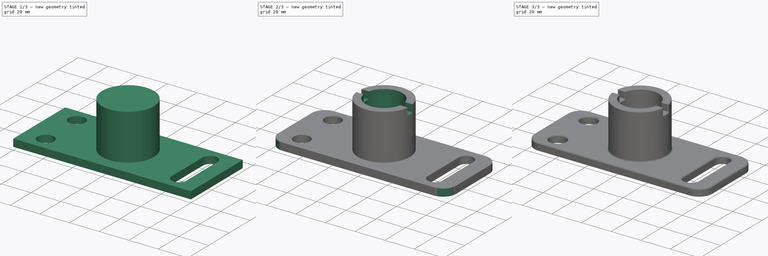
[diagram: build sequence overview — one tinted view per stage of 3, left to right]
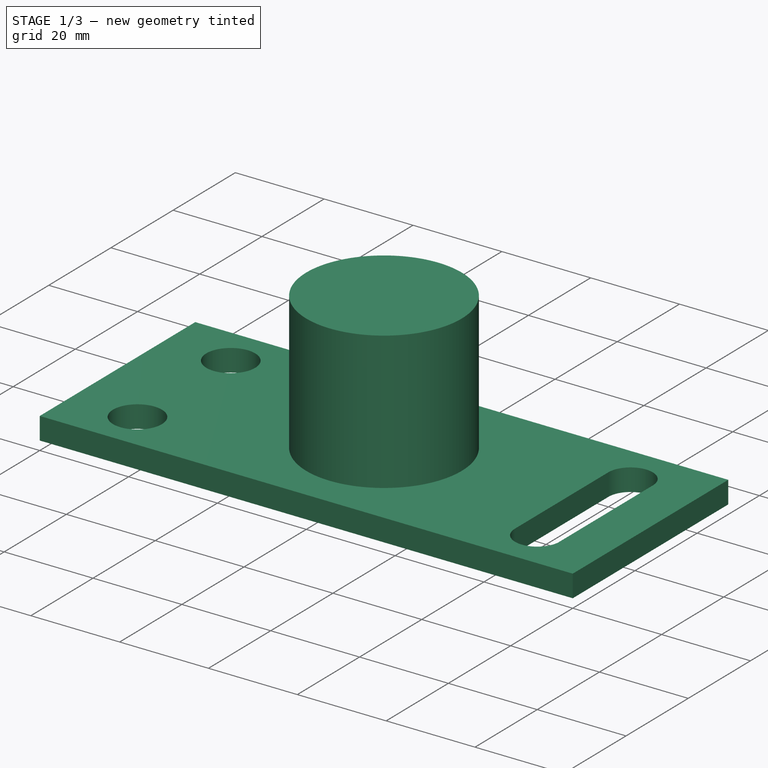
[diagram: stage 1 of 3 — iso view after this stage's code; geometry added in this stage tinted green]
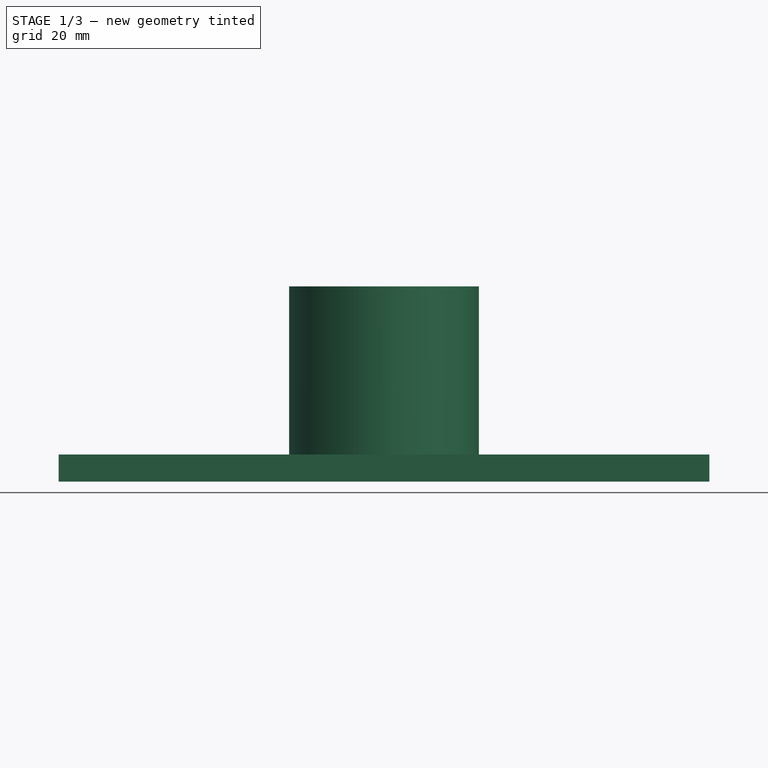
[diagram: stage 1 of 3 — front view after this stage's code; geometry added in this stage tinted green]
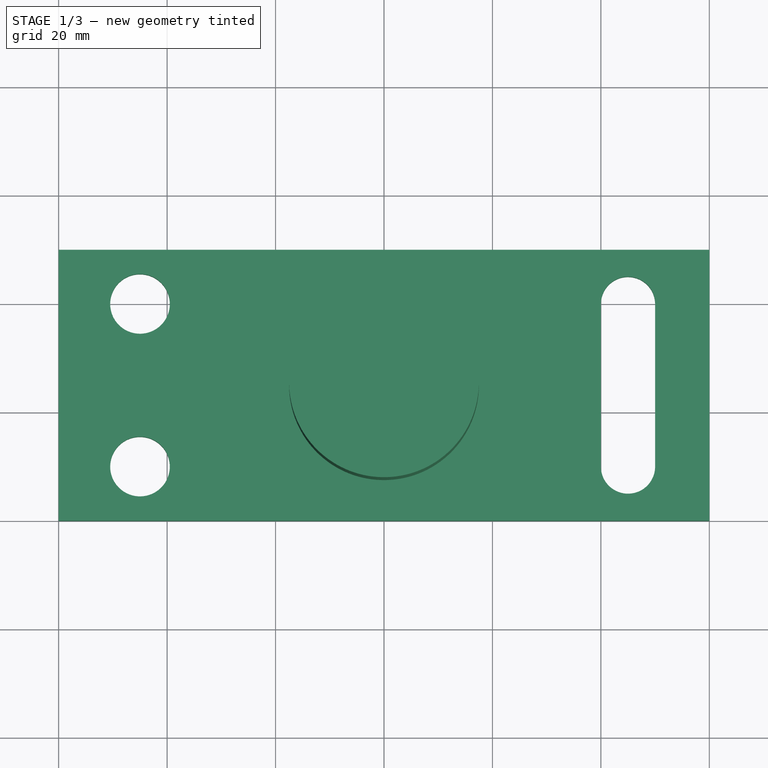
[diagram: stage 1 of 3 — top view after this stage's code; geometry added in this stage tinted green]
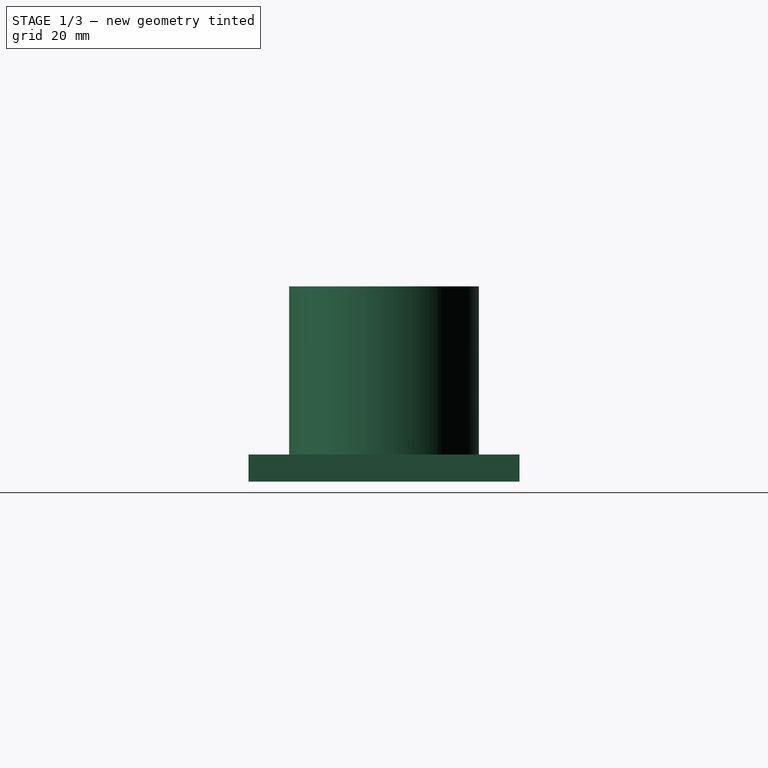
[diagram: stage 1 of 3 — right view after this stage's code; geometry added in this stage tinted green]
FCSTD DOCUMENT  (FreeCAD 0.19R24267 +148 (Git))
Label: test1
License: All rights reserved
LicenseURL: http://en.wikipedia.org/wiki/All_rights_reserved
objects: Sketcher::SketchObject×4, PartDesign::Fillet×3, PartDesign::Pad×2, PartDesign::Pocket×2, PartDesign::Body×1
note: 19 computed .brp shape members not serialized (recipe doc carries the construction recipe); baked Part::Feature solids carry a one-line shape summary decoded from their .brp

FEATURE [Sketcher::SketchObject] Sketch
  FullyConstrained = true
  MapMode = 5
  Support = -> [XY_Plane]
  sketch-geometry (11):
    g0: LineSegment StartX=0 StartY=50 StartZ=0 EndX=120 EndY=50 EndZ=0
    g1: LineSegment StartX=120 StartY=50 StartZ=0 EndX=120 EndY=0 EndZ=0
    g2: LineSegment StartX=120 StartY=0 StartZ=0 EndX=0 EndY=0 EndZ=0
    g3: LineSegment StartX=0 StartY=0 StartZ=0 EndX=0 EndY=50 EndZ=0
    g4: Circle CenterX=15 CenterY=10 CenterZ=0 NormalX=0 NormalY=0 NormalZ=1 AngleXU=0 Radius=5.5
    g5: LineSegment StartX=0 StartY=25 StartZ=0 EndX=120 EndY=25 EndZ=0
    g6: Circle CenterX=15 CenterY=40 CenterZ=0 NormalX=0 NormalY=0 NormalZ=1 AngleXU=0 Radius=5.5
    g7: ArcOfCircle CenterX=105 CenterY=40 CenterZ=0 NormalX=0 NormalY=0 NormalZ=1 AngleXU=0 Radius=5 StartAngle=-4.2661e-11 EndAngle=3.14159
    g8: ArcOfCircle CenterX=105 CenterY=10 CenterZ=0 NormalX=0 NormalY=0 NormalZ=1 AngleXU=0 Radius=5 StartAngle=3.14159 EndAngle=6.28319
    g9: LineSegment StartX=100 StartY=40 StartZ=0 EndX=100 EndY=10 EndZ=0
    g10: LineSegment StartX=110 StartY=40 StartZ=0 EndX=110 EndY=10 EndZ=0
  constraints (28):
    c: Coincident(g1,g2)
    c: Coincident(g2,g3)
    c: Coincident(g3,g0)
    c: Horizontal(g2)
    c: Vertical(g1)
    c: Vertical(g3)
    c: Horizontal(g0)
    c: Coincident(g0,g1)
    c: DistanceX(g0,g0) = 120
    c: DistanceY(g3,g3) = 50
    c: Coincident(g-1,g2)
    c: Symmetric(g0,g2,g5)
    c: Symmetric(g6,g4,g5)
    c: DistanceY(g4,g6) = 30
    c: DistanceX(g2,g4) = 15
    c: Diameter(g4) = 11
    c: Equal(g4,g6)
    c: Tangent(g7,g10) = 1.5708
    c: Tangent(g7,g9) = -1.5708
    c: Tangent(g9,g8) = -1.5708
    c: Tangent(g10,g8) = 1.5708
    c: Vertical(g9)
    c: Symmetric(g8,g7,g5)
    c: DistanceX(g8,g1) = 15
    c: DistanceY(g8,g7) = 30
    c: DistanceX(g8,g8) = 10
    c: PointOnObject(g5,g3)
    c: PointOnObject(g5,g1)
FEATURE [PartDesign::Pad] Pad
  Direction = (1,1,1)
  Length = 5
  Length2 = 100
  Profile = -> Sketch
  Type = 0
FEATURE [Sketcher::SketchObject] Sketch001
  ExternalGeometry = -> [Pad]
  FullyConstrained = true
  MapMode = 5
  Placement = pos=(0,0,5) rot=(0,0,1;0rad)
  Support = -> [Pad]
  sketch-geometry (1):
    g0: Circle CenterX=60 CenterY=25 CenterZ=0 NormalX=0 NormalY=0 NormalZ=1 AngleXU=0 Radius=17.5
  constraints (2):
    c: Symmetric(g-1,g-3,g0)
    c: Diameter(g0) = 35
FEATURE [PartDesign::Pad] Pad001
  BaseFeature = -> Pad
  Direction = (1,1,1)
  Length = 31
  Length2 = 100
  Profile = -> Sketch001
  Type = 0
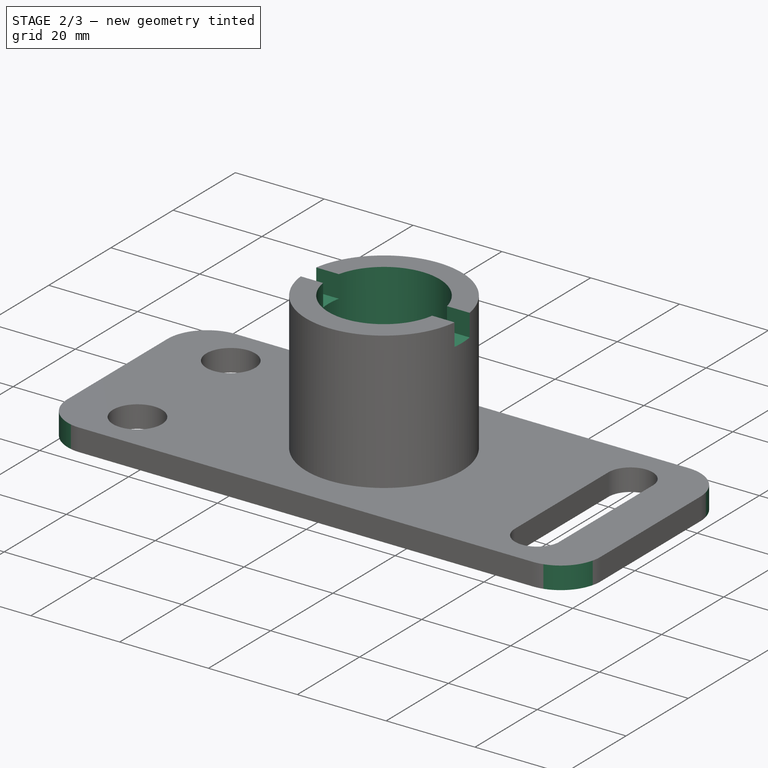
[diagram: stage 2 of 3 — iso view after this stage's code; geometry added in this stage tinted green]
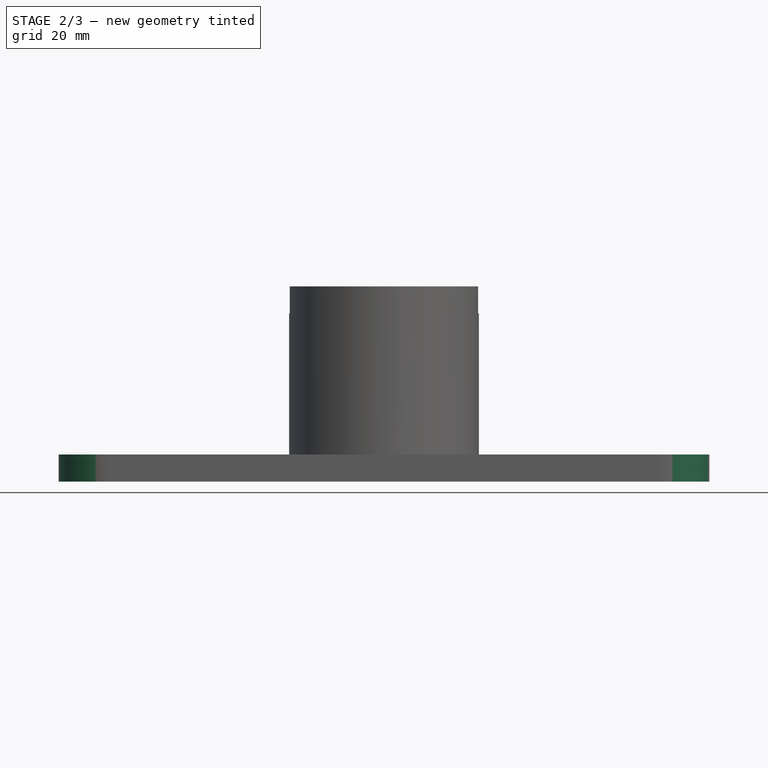
[diagram: stage 2 of 3 — front view after this stage's code; geometry added in this stage tinted green]
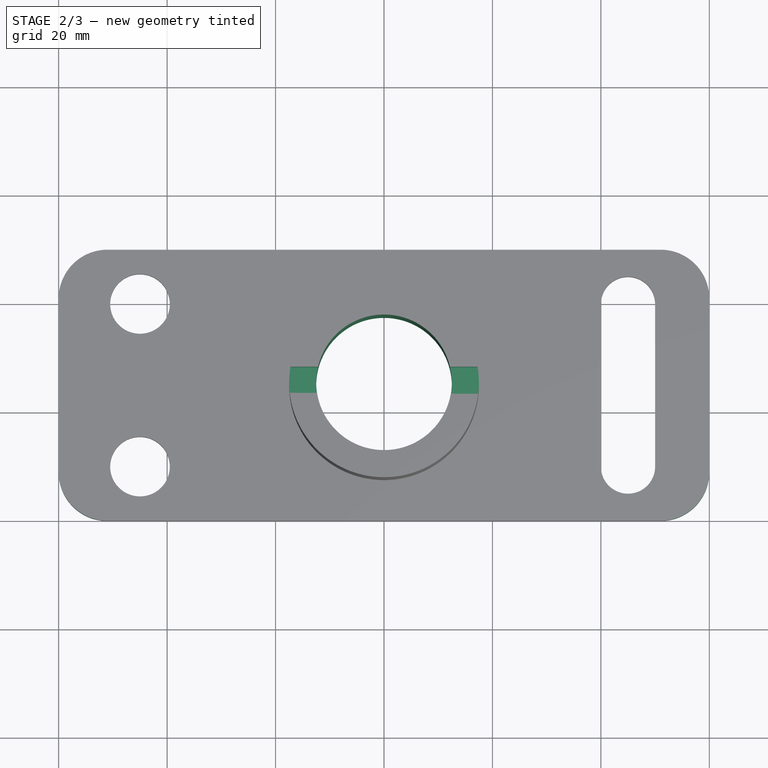
[diagram: stage 2 of 3 — top view after this stage's code; geometry added in this stage tinted green]
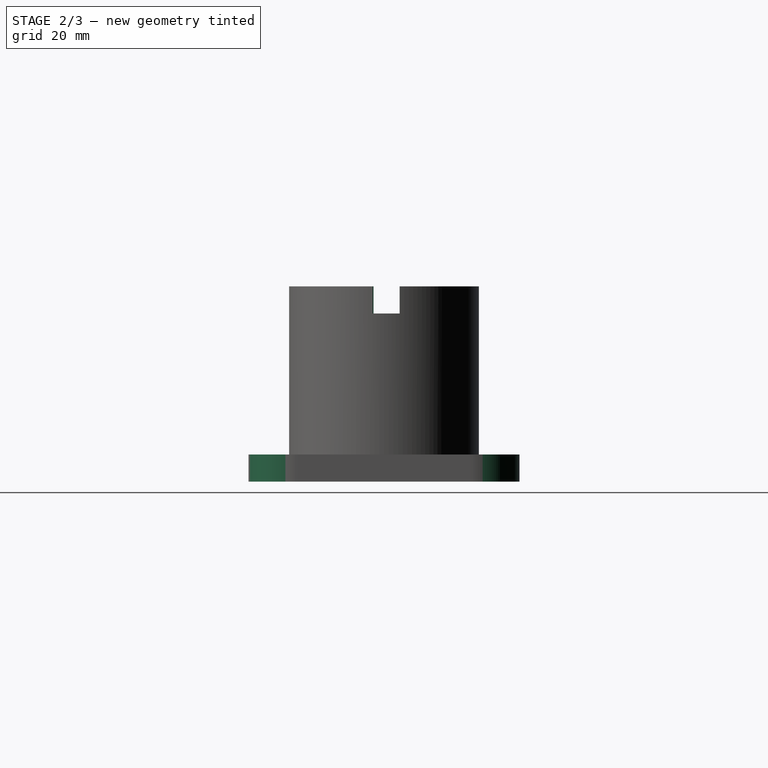
[diagram: stage 2 of 3 — right view after this stage's code; geometry added in this stage tinted green]
FEATURE [Sketcher::SketchObject] Sketch002
  ExternalGeometry = -> [Pad001]
  FullyConstrained = true
  MapMode = 5
  Placement = pos=(0,0,36) rot=(0,0,1;0rad)
  Support = -> [Pad001]
  sketch-geometry (1):
    g0: Circle CenterX=60 CenterY=25 CenterZ=0 NormalX=0 NormalY=0 NormalZ=1 AngleXU=0 Radius=12.5
  constraints (2):
    c: Coincident(g0,g-3)
    c: Diameter(g0) = 25
FEATURE [PartDesign::Pocket] Pocket
  BaseFeature = -> Pad001
  Length = 5
  Length2 = 100
  Profile = -> Sketch002
  Type = 1
FEATURE [Sketcher::SketchObject] Sketch003
  ExternalGeometry = -> [Pocket]
  FullyConstrained = false
  MapMode = 5
  Placement = pos=(0,0,36) rot=(0,0,1;0rad)
  Support = -> [Pocket]
  sketch-geometry (11):
    g0: ArcOfCircle CenterX=60 CenterY=25 CenterZ=0 NormalX=0 NormalY=0 NormalZ=1 AngleXU=0 Radius=12.5 StartAngle=2.90964 EndAngle=3.29901
    g1: ArcOfCircle CenterX=60 CenterY=25 CenterZ=0 NormalX=0 NormalY=0 NormalZ=1 AngleXU=0 Radius=17.5 StartAngle=2.97664 EndAngle=3.25218
    g2: LineSegment StartX=77.2625 StartY=27.8735 StartZ=0 EndX=72.1652 EndY=27.8735 EndZ=0
    g3: LineSegment StartX=39.8167 StartY=26.4961 StartZ=0 EndX=39.8167 EndY=23.5039 EndZ=0
    g4: LineSegment StartX=42.6069 StartY=23.0686 StartZ=0 EndX=47.6545 EndY=23.0405 EndZ=0
    g5: LineSegment StartX=80.1833 StartY=23.5039 StartZ=0 EndX=80.1833 EndY=26.4961 EndZ=0
    g6: Circle CenterX=60 CenterY=25 CenterZ=0 NormalX=0 NormalY=0 NormalZ=1 AngleXU=0 Radius=20.2387
    g7: LineSegment StartX=47.8348 StartY=27.8735 StartZ=0 EndX=42.7375 EndY=27.8735 EndZ=0
    g8: LineSegment StartX=72.3228 StartY=22.9028 StartZ=0 EndX=77.3705 EndY=22.8747 EndZ=0
    g9: ArcOfCircle CenterX=60 CenterY=25 CenterZ=0 NormalX=0 NormalY=0 NormalZ=1 AngleXU=0 Radius=12.5 StartAngle=6.11462 EndAngle=6.51514
    g10: ArcOfCircle CenterX=60 CenterY=25 CenterZ=0 NormalX=0 NormalY=0 NormalZ=1 AngleXU=0 Radius=17.5 StartAngle=6.16144 EndAngle=6.44813
  constraints (27):
    c: Coincident(g0,g-4)
    c: Coincident(g1,g0)
    c: Equal(g1,g-4)
    c: Equal(g0,g-3)
    c: PointOnObject(g3,g6)
    c: PointOnObject(g3,g6)
    c: PointOnObject(g5,g6)
    c: PointOnObject(g5,g6)
    c: Coincident(g6,g0)
    c: Horizontal(g2)
    c: Equal(g5,g3)
    c: PointOnObject(g1,g2)
    c: Coincident(g2,g9)
    c: Coincident(g7,g0)
    c: Tangent(g2,g7)
    c: Tangent(g4,g8)
    c: PointOnObject(g7,g1)
    c: Coincident(g2,g10)
    c: Equal(g0,g9)
    c: Coincident(g0,g4)
    c: Coincident(g9,g8)
    c: Coincident(g0,g9)
    c: Equal(g1,g10)
    c: Coincident(g1,g4)
    c: Coincident(g10,g8)
    c: Coincident(g1,g10)
    c: Distance(g8,g2) = 5
FEATURE [PartDesign::Pocket] Pocket001
  BaseFeature = -> Pocket
  Length = 5
  Length2 = 100
  Profile = -> Sketch003
  Type = 0
FEATURE [PartDesign::Fillet] Fillet
  Base = -> Pocket001 [Edge5,Edge1,Edge8,Edge2]
  BaseFeature = -> Pocket001
  Radius = 9
  SupportTransform = false
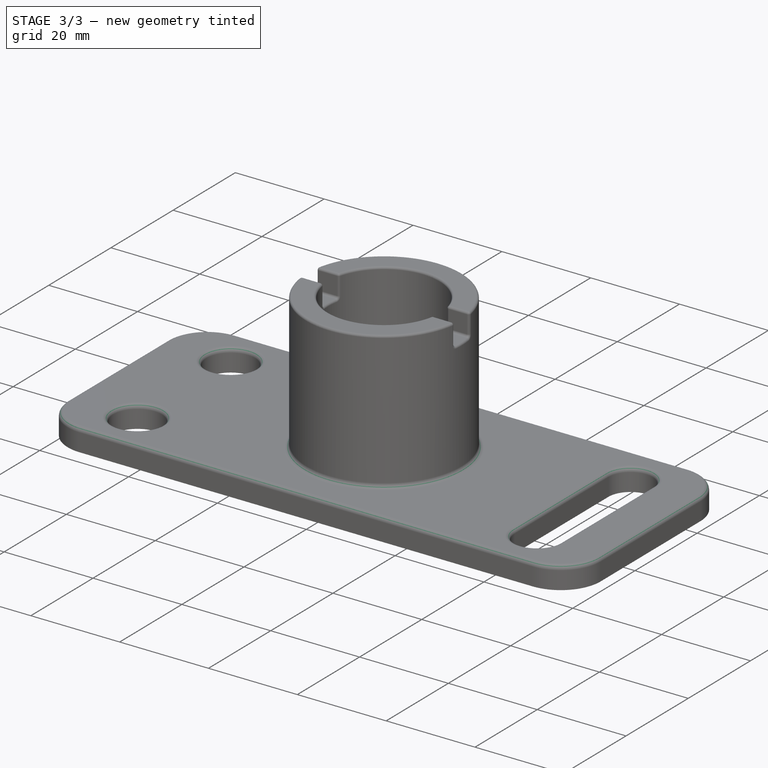
[diagram: stage 3 of 3 — iso view after this stage's code; geometry added in this stage tinted green]
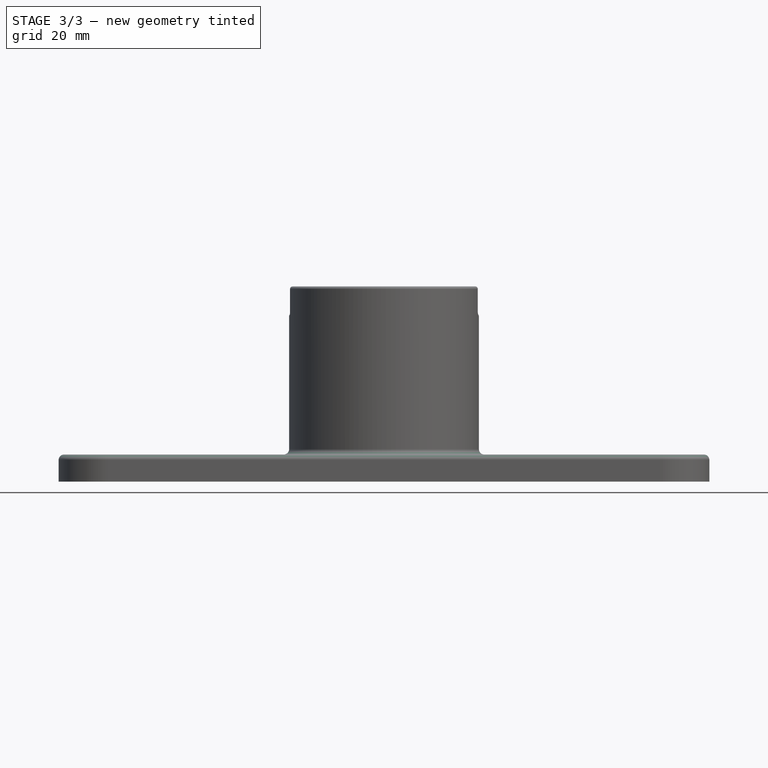
[diagram: stage 3 of 3 — front view after this stage's code; geometry added in this stage tinted green]
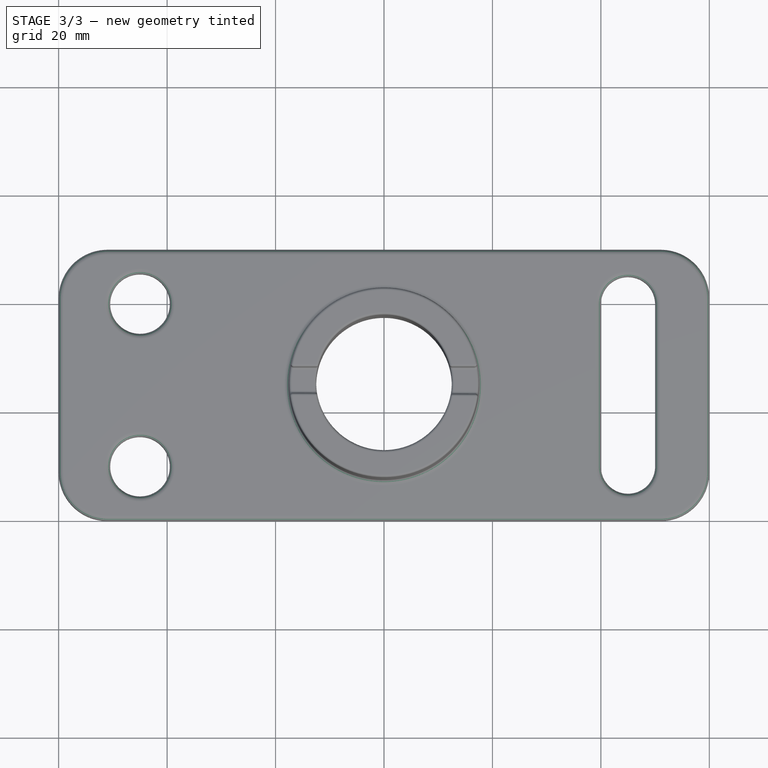
[diagram: stage 3 of 3 — top view after this stage's code; geometry added in this stage tinted green]
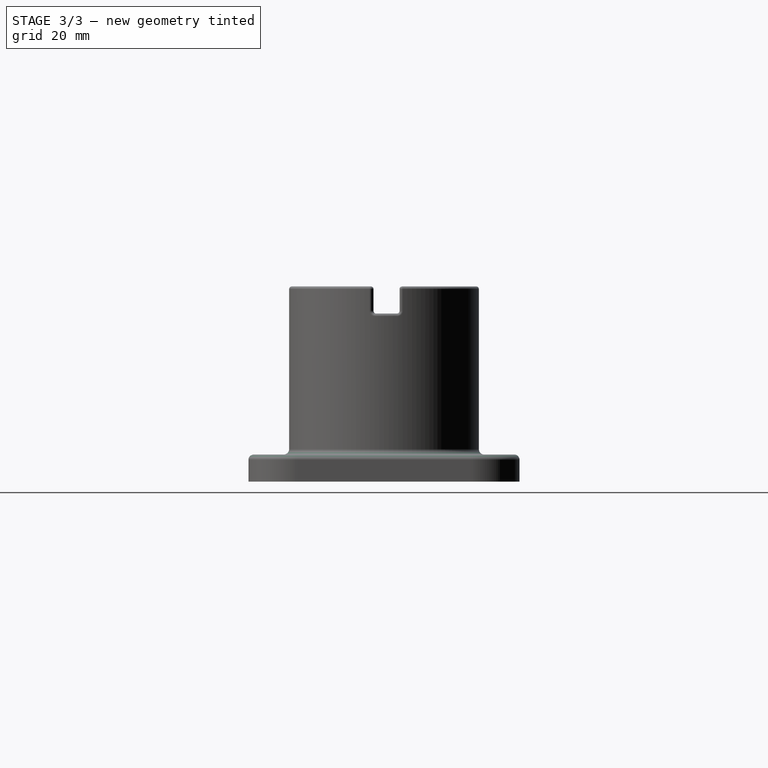
[diagram: stage 3 of 3 — right view after this stage's code; geometry added in this stage tinted green]
FEATURE [PartDesign::Fillet] Fillet001
  Base = -> Fillet [Face5]
  BaseFeature = -> Fillet
  Radius = 1
  SupportTransform = false
FEATURE [PartDesign::Fillet] Fillet002
  Base = -> Fillet001 [Face33,Face37,Face39,Face38,Face35,Face36,Face40,Edge70,Face34]
  BaseFeature = -> Fillet001
  Radius = 0.5
  SupportTransform = false
FEATURE [PartDesign::Body] Body
  Group = -> [Sketch,Pad,Sketch001,Pad001,Sketch002,Pocket,Sketch003,Pocket001,Fillet,Fillet001,Fillet002]
  Origin = -> Origin
  Tip = -> Fillet002
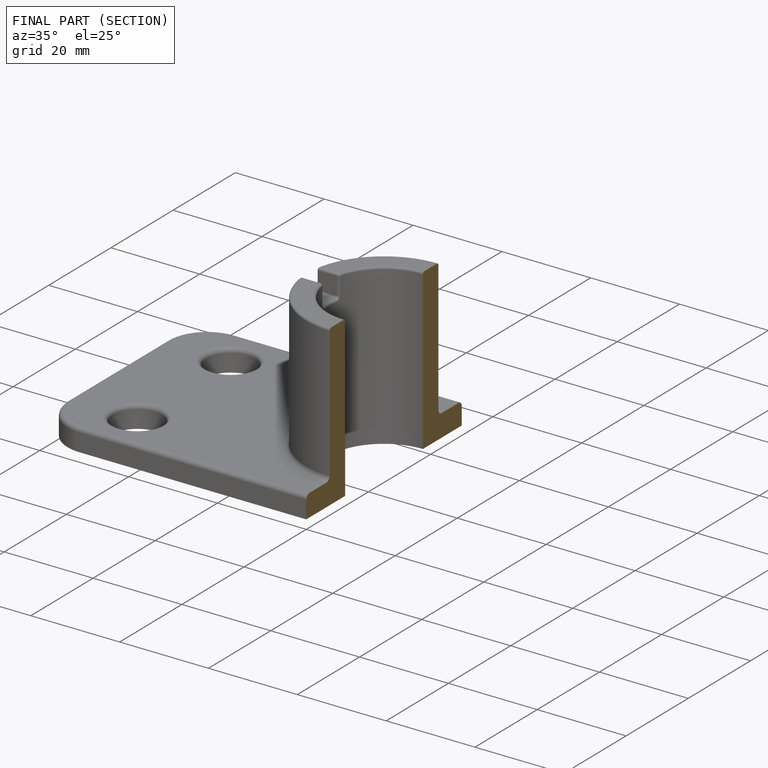
[diagram: finished part — half-section view (interior)]
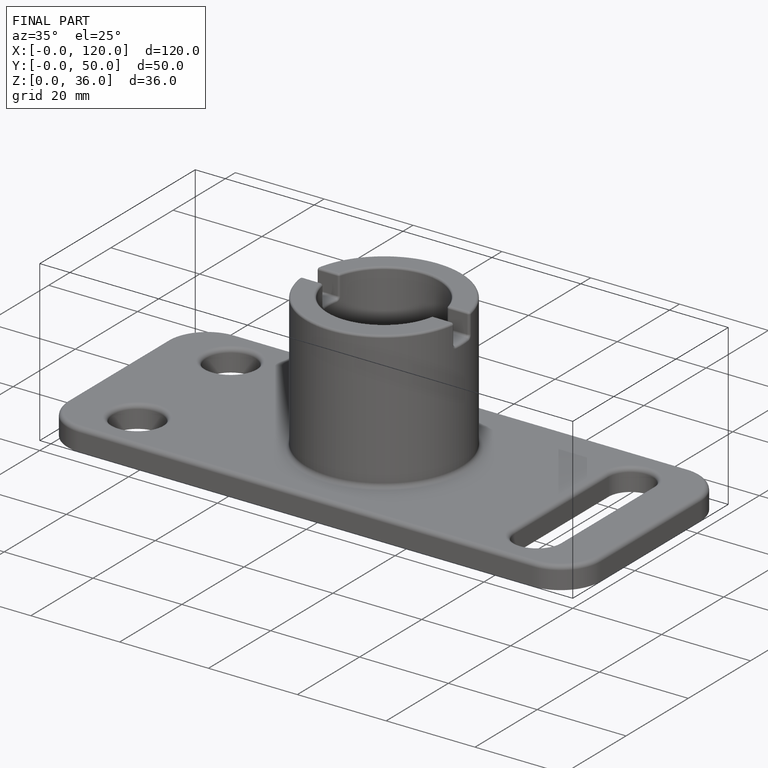
[diagram: finished part — iso view with bounding-box wireframe]
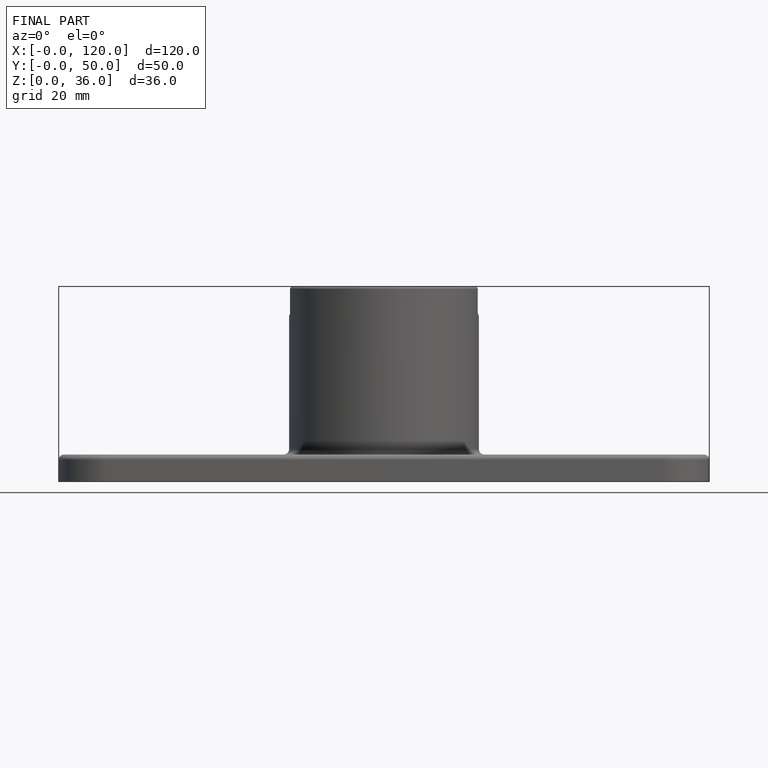
[diagram: finished part — front view with bounding-box wireframe]
